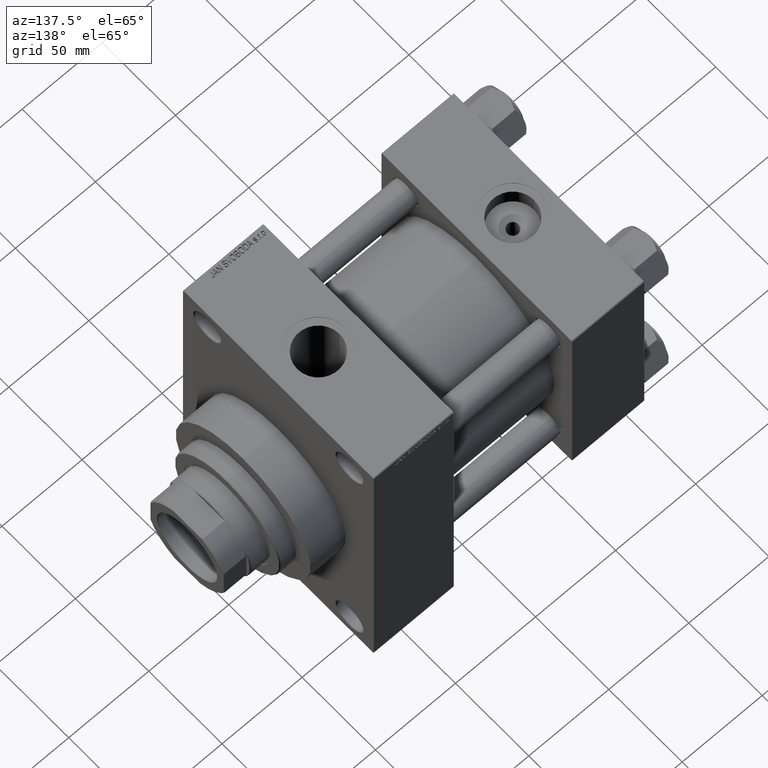
[diagram: clean part render]
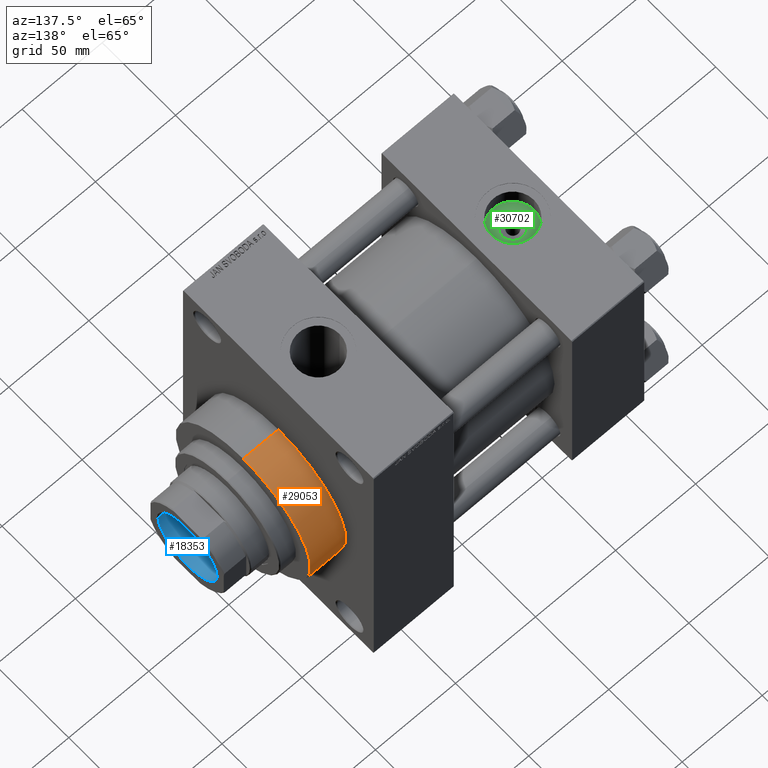
[diagram: same view with three faces highlighted in distinct colors, each labeled with its STEP entity id]
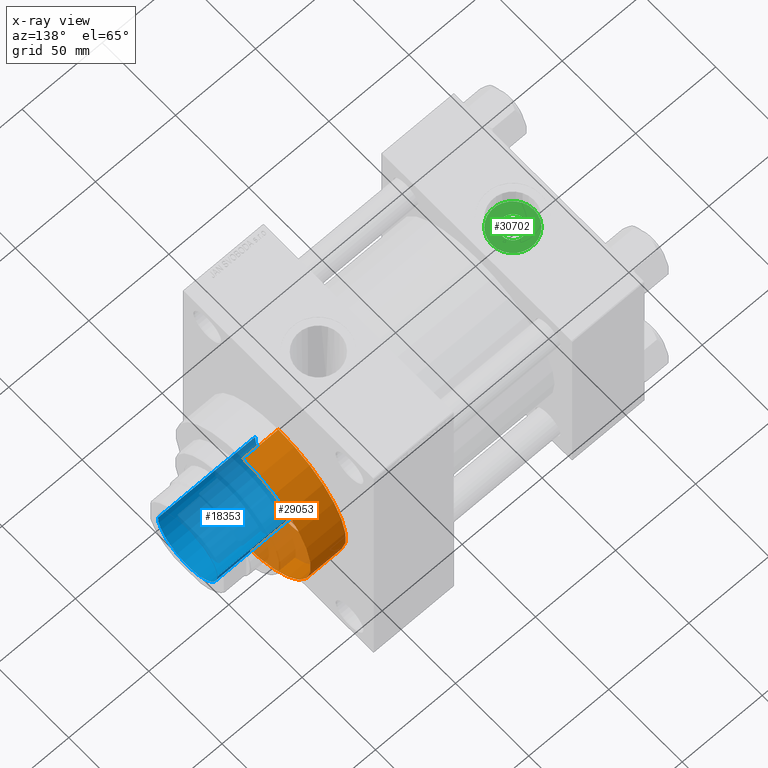
[diagram: x-ray of the same camera — body ghosted, the three highlighted faces saturated]
A machine part, auxiliary view with three faces highlighted in distinct colors.
The next image is the same camera in x-ray (body ghosted, the three faces saturated) — at least one of them is partly hidden behind the body in this view.
Their STEP definitions:

[orange] entity #29053 — the highlighted cylindrical surface (partial cylindrical patch) has radius 46 mm, axis along (-1, -0, -0).
#927 = ORIENTED_EDGE ( 'NONE', *, *, #4390, .F. ) ;
#1535 = DIRECTION ( 'NONE',  ( -1.000000000000000000, -0.000000000000000000, -0.000000000000000000 ) ) ;
#3322 = DIRECTION ( 'NONE',  ( 0.000000000000000000, 0.000000000000000000, -1.000000000000000000 ) ) ;
#3414 = AXIS2_PLACEMENT_3D ( 'NONE', #27553, #38427, #26832 ) ;
#4026 = VERTEX_POINT ( 'NONE', #5157 ) ;
#4390 = EDGE_CURVE ( 'NONE', #4026, #18490, #28046, .T. ) ;
#5077 = EDGE_CURVE ( 'NONE', #38921, #28381, #33472, .T. ) ;
#5157 = CARTESIAN_POINT ( 'NONE',  ( 190.9999999999999716, 5.633375276077824704E-15, -46.00000000000000000 ) ) ;
#8748 = VECTOR ( 'NONE', #23868, 1000.000000000000000 ) ;
#9262 = CARTESIAN_POINT ( 'NONE',  ( 168.9999999999999716, 5.633375276077824704E-15, -46.00000000000000000 ) ) ;
#12452 = CARTESIAN_POINT ( 'NONE',  ( 190.9999999999999716, 0.000000000000000000, 46.00000000000000000 ) ) ;
#12997 = CARTESIAN_POINT ( 'NONE',  ( 190.9999999999999716, 5.633375276077824704E-15, -46.00000000000000000 ) ) ;
#15094 = DIRECTION ( 'NONE',  ( 1.000000000000000000, 0.000000000000000000, 0.000000000000000000 ) ) ;
#15479 = VECTOR ( 'NONE', #1535, 1000.000000000000000 ) ;
#16954 = LINE ( 'NONE', #31211, #15479 ) ;
#17917 = CARTESIAN_POINT ( 'NONE',  ( 190.9999999999999716, 0.000000000000000000, 0.000000000000000000 ) ) ;
#18490 = VERTEX_POINT ( 'NONE', #12452 ) ;
#18773 = ORIENTED_EDGE ( 'NONE', *, *, #23605, .F. ) ;
#18780 = AXIS2_PLACEMENT_3D ( 'NONE', #36850, #15094, #3322 ) ;
#21547 = CARTESIAN_POINT ( 'NONE',  ( 168.9999999999999716, 0.000000000000000000, 46.00000000000000000 ) ) ;
#23605 = EDGE_CURVE ( 'NONE', #18490, #28381, #16954, .T. ) ;
#23868 = DIRECTION ( 'NONE',  ( -1.000000000000000000, -0.000000000000000000, -0.000000000000000000 ) ) ;
#24949 = DIRECTION ( 'NONE',  ( -1.000000000000000000, -0.000000000000000000, -0.000000000000000000 ) ) ;
#25190 = FACE_OUTER_BOUND ( 'NONE', #35859, .T. ) ;
#25708 = AXIS2_PLACEMENT_3D ( 'NONE', #17917, #24949, #39920 ) ;
#26832 = DIRECTION ( 'NONE',  ( 0.000000000000000000, 0.000000000000000000, -1.000000000000000000 ) ) ;
#27553 = CARTESIAN_POINT ( 'NONE',  ( 168.9999999999999716, 0.000000000000000000, 0.000000000000000000 ) ) ;
#27737 = LINE ( 'NONE', #12997, #8748 ) ;
#28046 = CIRCLE ( 'NONE', #18780, 46.00000000000000000 ) ;
#28381 = VERTEX_POINT ( 'NONE', #21547 ) ;
#29053 = ADVANCED_FACE ( 'NONE', ( #25190 ), #36286, .T. ) ;
#31211 = CARTESIAN_POINT ( 'NONE',  ( 190.9999999999999716, 0.000000000000000000, 46.00000000000000000 ) ) ;
#32913 = EDGE_CURVE ( 'NONE', #4026, #38921, #27737, .T. ) ;
#33472 = CIRCLE ( 'NONE', #3414, 46.00000000000000000 ) ;
#35859 = EDGE_LOOP ( 'NONE', ( #927, #37381, #44273, #18773 ) ) ;
#36286 = CYLINDRICAL_SURFACE ( 'NONE', #25708, 46.00000000000000000 ) ;
#36850 = CARTESIAN_POINT ( 'NONE',  ( 190.9999999999999716, 0.000000000000000000, 0.000000000000000000 ) ) ;
#37381 = ORIENTED_EDGE ( 'NONE', *, *, #32913, .T. ) ;
#38427 = DIRECTION ( 'NONE',  ( 1.000000000000000000, 0.000000000000000000, 0.000000000000000000 ) ) ;
#38921 = VERTEX_POINT ( 'NONE', #9262 ) ;
#39920 = DIRECTION ( 'NONE',  ( 0.000000000000000000, 0.000000000000000000, 1.000000000000000000 ) ) ;
#44273 = ORIENTED_EDGE ( 'NONE', *, *, #5077, .T. ) ;

[blue] entity #18353 — the highlighted cylindrical surface (partial cylindrical patch) has radius 20.25 mm, axis along (1, 0, 0).
#1409 = EDGE_LOOP ( 'NONE', ( #28350, #38396, #7971, #44035 ) ) ;
#2869 = FACE_OUTER_BOUND ( 'NONE', #1409, .T. ) ;
#4509 = AXIS2_PLACEMENT_3D ( 'NONE', #10324, #37339, #30101 ) ;
#5109 = VECTOR ( 'NONE', #10778, 1000.000000000000000 ) ;
#5562 = LINE ( 'NONE', #38151, #34407 ) ;
#5948 = CARTESIAN_POINT ( 'NONE',  ( 20.24999999999999289, 0.000000000000000000, 180.6999999999999602 ) ) ;
#7004 = DIRECTION ( 'NONE',  ( 0.000000000000000000, 0.000000000000000000, 1.000000000000000000 ) ) ;
#7971 = ORIENTED_EDGE ( 'NONE', *, *, #10643, .T. ) ;
#10142 = EDGE_CURVE ( 'NONE', #19718, #25894, #12826, .T. ) ;
#10324 = CARTESIAN_POINT ( 'NONE',  ( 0.000000000000000000, 0.000000000000000000, 181.0000000000000284 ) ) ;
#10612 = DIRECTION ( 'NONE',  ( 1.000000000000000000, 0.000000000000000000, 0.000000000000000000 ) ) ;
#10643 = EDGE_CURVE ( 'NONE', #17236, #19718, #5562, .T. ) ;
#10685 = CARTESIAN_POINT ( 'NONE',  ( 0.000000000000000000, 0.000000000000000000, 120.0000000000000284 ) ) ;
#10778 = DIRECTION ( 'NONE',  ( -0.000000000000000000, -0.000000000000000000, 1.000000000000000000 ) ) ;
#11709 = CARTESIAN_POINT ( 'NONE',  ( -20.24999999999999289, 2.479909768273389511E-15, 181.0000000000000284 ) ) ;
#12826 = CIRCLE ( 'NONE', #37511, 20.24999999999999289 ) ;
#15005 = CARTESIAN_POINT ( 'NONE',  ( -20.24999999999999289, 2.479909768273389511E-15, 180.6999999999999602 ) ) ;
#17236 = VERTEX_POINT ( 'NONE', #23313 ) ;
#18353 = ADVANCED_FACE ( 'NONE', ( #2869 ), #43430, .F. ) ;
#19718 = VERTEX_POINT ( 'NONE', #5948 ) ;
#19789 = DIRECTION ( 'NONE',  ( -0.000000000000000000, -0.000000000000000000, 1.000000000000000000 ) ) ;
#21307 = DIRECTION ( 'NONE',  ( 1.000000000000000000, 0.000000000000000000, 0.000000000000000000 ) ) ;
#23313 = CARTESIAN_POINT ( 'NONE',  ( 20.24999999999998934, 0.000000000000000000, 120.0000000000000284 ) ) ;
#24127 = VERTEX_POINT ( 'NONE', #29907 ) ;
#25894 = VERTEX_POINT ( 'NONE', #15005 ) ;
#27221 = CIRCLE ( 'NONE', #42691, 20.24999999999998934 ) ;
#28350 = ORIENTED_EDGE ( 'NONE', *, *, #37660, .F. ) ;
#28403 = EDGE_CURVE ( 'NONE', #17236, #24127, #27221, .T. ) ;
#29907 = CARTESIAN_POINT ( 'NONE',  ( -20.24999999999998934, 2.479909768273389117E-15, 120.0000000000000284 ) ) ;
#30101 = DIRECTION ( 'NONE',  ( 1.000000000000000000, 0.000000000000000000, 0.000000000000000000 ) ) ;
#34407 = VECTOR ( 'NONE', #19789, 1000.000000000000000 ) ;
#36279 = DIRECTION ( 'NONE',  ( -0.000000000000000000, -0.000000000000000000, 1.000000000000000000 ) ) ;
#37339 = DIRECTION ( 'NONE',  ( -0.000000000000000000, -0.000000000000000000, 1.000000000000000000 ) ) ;
#37511 = AXIS2_PLACEMENT_3D ( 'NONE', #43714, #7004, #10612 ) ;
#37660 = EDGE_CURVE ( 'NONE', #24127, #25894, #44815, .T. ) ;
#38151 = CARTESIAN_POINT ( 'NONE',  ( 20.24999999999999289, 0.000000000000000000, 181.0000000000000284 ) ) ;
#38396 = ORIENTED_EDGE ( 'NONE', *, *, #28403, .F. ) ;
#42691 = AXIS2_PLACEMENT_3D ( 'NONE', #10685, #36279, #21307 ) ;
#43430 = CYLINDRICAL_SURFACE ( 'NONE', #4509, 20.24999999999999289 ) ;
#43714 = CARTESIAN_POINT ( 'NONE',  ( 0.000000000000000000, 0.000000000000000000, 180.6999999999999602 ) ) ;
#44035 = ORIENTED_EDGE ( 'NONE', *, *, #10142, .T. ) ;
#44815 = LINE ( 'NONE', #11709, #5109 ) ;

[green] entity #30702 — the highlighted planar face has unit normal (0, 0, 1).
#590 = CARTESIAN_POINT ( 'NONE',  ( 22.50000000000000000, -8.673617379884035472E-15, 54.19999999999999574 ) ) ;
#2235 = ORIENTED_EDGE ( 'NONE', *, *, #12196, .T. ) ;
#2279 = AXIS2_PLACEMENT_3D ( 'NONE', #23378, #31355, #16856 ) ;
#3325 = ORIENTED_EDGE ( 'NONE', *, *, #20644, .T. ) ;
#5340 = CIRCLE ( 'NONE', #2279, 6.640000000000146230 ) ;
#6141 = EDGE_LOOP ( 'NONE', ( #42795, #3325 ) ) ;
#7119 = CARTESIAN_POINT ( 'NONE',  ( 22.50000000000000000, -8.673617379884035472E-15, 54.19999999999999574 ) ) ;
#7466 = CIRCLE ( 'NONE', #46818, 13.22000000000000242 ) ;
#7982 = AXIS2_PLACEMENT_3D ( 'NONE', #35924, #32313, #39327 ) ;
#8290 = AXIS2_PLACEMENT_3D ( 'NONE', #20823, #13103, #46934 ) ;
#11192 = DIRECTION ( 'NONE',  ( 1.000000000000000000, 0.000000000000000000, 0.000000000000000000 ) ) ;
#12196 = EDGE_CURVE ( 'NONE', #27030, #44296, #7466, .T. ) ;
#12519 = EDGE_CURVE ( 'NONE', #38686, #14081, #38347, .T. ) ;
#13103 = DIRECTION ( 'NONE',  ( -0.000000000000000000, -0.000000000000000000, -1.000000000000000000 ) ) ;
#14081 = VERTEX_POINT ( 'NONE', #26380 ) ;
#14806 = FACE_OUTER_BOUND ( 'NONE', #41777, .T. ) ;
#15044 = DIRECTION ( 'NONE',  ( 0.000000000000000000, 0.000000000000000000, 1.000000000000000000 ) ) ;
#16151 = ORIENTED_EDGE ( 'NONE', *, *, #33047, .T. ) ;
#16856 = DIRECTION ( 'NONE',  ( 1.000000000000000000, 0.000000000000000000, 0.000000000000000000 ) ) ;
#18669 = DIRECTION ( 'NONE',  ( 0.000000000000000000, 0.000000000000000000, 1.000000000000000000 ) ) ;
#19156 = CARTESIAN_POINT ( 'NONE',  ( 29.14000000000014623, -8.673617379884035472E-15, 54.19999999999999574 ) ) ;
#20644 = EDGE_CURVE ( 'NONE', #14081, #38686, #5340, .T. ) ;
#20823 = CARTESIAN_POINT ( 'NONE',  ( 22.50000000000000000, -8.673617379884035472E-15, 54.19999999999999574 ) ) ;
#23378 = CARTESIAN_POINT ( 'NONE',  ( 22.50000000000000000, -8.673617379884035472E-15, 54.19999999999999574 ) ) ;
#26380 = CARTESIAN_POINT ( 'NONE',  ( 15.85999999999985377, -7.860451905250175219E-15, 54.19999999999999574 ) ) ;
#27030 = VERTEX_POINT ( 'NONE', #30175 ) ;
#29551 = DIRECTION ( 'NONE',  ( 1.000000000000000000, 0.000000000000000000, -0.000000000000000000 ) ) ;
#30175 = CARTESIAN_POINT ( 'NONE',  ( 9.279999999999994031, -7.054634311411234321E-15, 54.19999999999999574 ) ) ;
#30702 = ADVANCED_FACE ( 'NONE', ( #44064, #14806 ), #40197, .T. ) ;
#31355 = DIRECTION ( 'NONE',  ( -0.000000000000000000, -0.000000000000000000, -1.000000000000000000 ) ) ;
#32313 = DIRECTION ( 'NONE',  ( 0.000000000000000000, 0.000000000000000000, 1.000000000000000000 ) ) ;
#33047 = EDGE_CURVE ( 'NONE', #44296, #27030, #41908, .T. ) ;
#34239 = AXIS2_PLACEMENT_3D ( 'NONE', #7119, #15044, #29551 ) ;
#35924 = CARTESIAN_POINT ( 'NONE',  ( 22.50000000000000000, -8.673617379884035472E-15, 54.19999999999999574 ) ) ;
#38347 = CIRCLE ( 'NONE', #8290, 6.640000000000146230 ) ;
#38686 = VERTEX_POINT ( 'NONE', #19156 ) ;
#39327 = DIRECTION ( 'NONE',  ( 1.000000000000000000, 0.000000000000000000, 0.000000000000000000 ) ) ;
#40197 = PLANE ( 'NONE',  #34239 ) ;
#40279 = CARTESIAN_POINT ( 'NONE',  ( 35.71999999999999886, -8.673617379884035472E-15, 54.19999999999999574 ) ) ;
#41777 = EDGE_LOOP ( 'NONE', ( #16151, #2235 ) ) ;
#41908 = CIRCLE ( 'NONE', #7982, 13.22000000000000242 ) ;
#42795 = ORIENTED_EDGE ( 'NONE', *, *, #12519, .T. ) ;
#44064 = FACE_BOUND ( 'NONE', #6141, .T. ) ;
#44296 = VERTEX_POINT ( 'NONE', #40279 ) ;
#46818 = AXIS2_PLACEMENT_3D ( 'NONE', #590, #18669, #11192 ) ;
#46934 = DIRECTION ( 'NONE',  ( 1.000000000000000000, 0.000000000000000000, 0.000000000000000000 ) ) ;